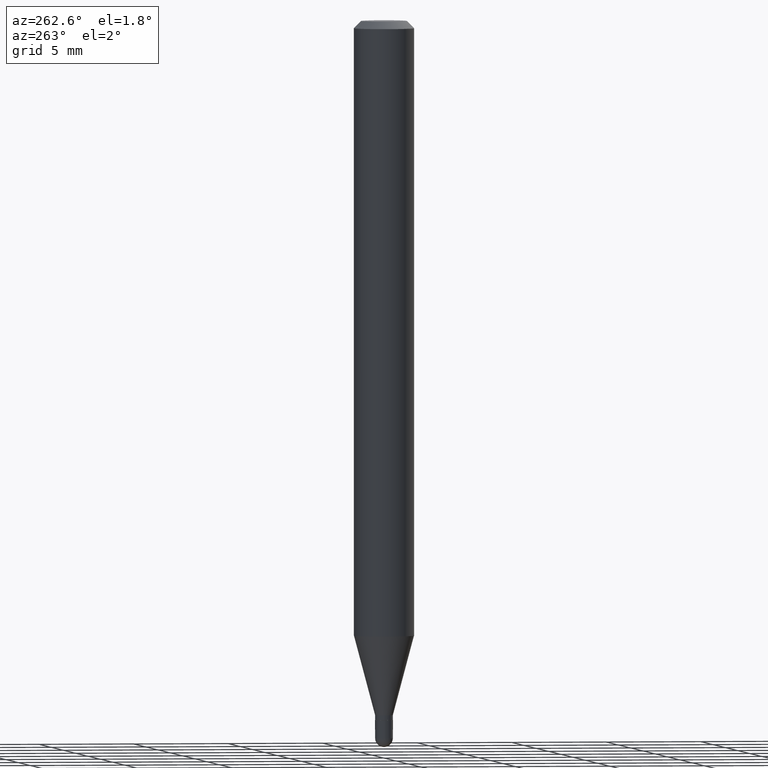
[diagram: clean part render]
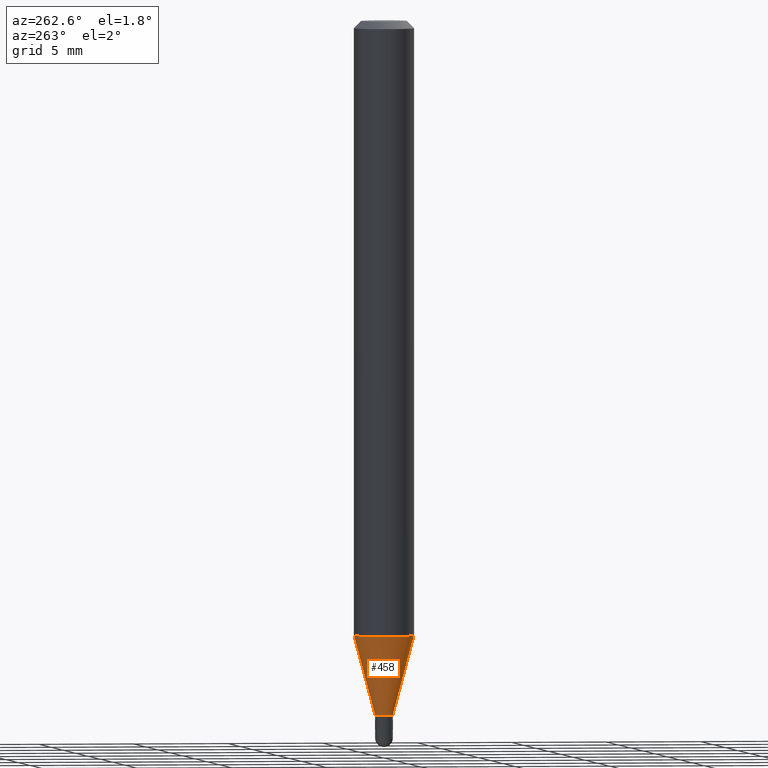
[diagram: same view with one face highlighted and labeled with its STEP entity id]
A machine part, auxiliary view. The second image highlights one B-rep face of the part: STEP entity #458.
In plain terms, the highlighted conical surface has half-angle 15 deg.
Its self-contained STEP definition (entity closure, byte-faithful):
#7 = LINE ( 'NONE', #441, #89 ) ;
#38 = FACE_OUTER_BOUND ( 'NONE', #469, .T. ) ;
#41 = VERTEX_POINT ( 'NONE', #457 ) ;
#52 = ORIENTED_EDGE ( 'NONE', *, *, #195, .T. ) ;
#79 = CARTESIAN_POINT ( 'NONE',  ( 3.506824125616585168E-29, -5.006752938649570137E-15, -1.434000000000000163 ) ) ;
#80 = ORIENTED_EDGE ( 'NONE', *, *, #477, .F. ) ;
#89 = VECTOR ( 'NONE', #324, 39.37007874015749564 ) ;
#119 = ORIENTED_EDGE ( 'NONE', *, *, #378, .T. ) ;
#132 = CARTESIAN_POINT ( 'NONE',  ( -1.291848095371603260E-16, -0.01850000000000492917, -1.434000000000000163 ) ) ;
#134 = EDGE_CURVE ( 'NONE', #353, #280, #298, .T. ) ;
#140 = DIRECTION ( 'NONE',  ( -2.445484048547130509E-29, 3.491459510913228997E-15, 1.000000000000000000 ) ) ;
#155 = VERTEX_POINT ( 'NONE', #132 ) ;
#161 = CONICAL_SURFACE ( 'NONE', #503, 0.01849999999999992276, 0.2617993877991501850 ) ;
#183 = CARTESIAN_POINT ( 'NONE',  ( -4.364351673553607559E-16, -0.06250000000000444089, -1.269789764466969340 ) ) ;
#195 = EDGE_CURVE ( 'NONE', #41, #155, #213, .T. ) ;
#208 = LINE ( 'NONE', #405, #465 ) ;
#213 = CIRCLE ( 'NONE', #229, 0.01849999999999992276 ) ;
#229 = AXIS2_PLACEMENT_3D ( 'NONE', #505, #140, #507 ) ;
#237 = AXIS2_PLACEMENT_3D ( 'NONE', #257, #336, #290 ) ;
#257 = CARTESIAN_POINT ( 'NONE',  ( 3.105250614012392213E-29, -4.433419550008470244E-15, -1.269789764466969562 ) ) ;
#280 = VERTEX_POINT ( 'NONE', #183 ) ;
#281 = DIRECTION ( 'NONE',  ( -2.445484048547130509E-29, 3.491459510913228997E-15, 1.000000000000000000 ) ) ;
#290 = DIRECTION ( 'NONE',  ( -6.982962677686265922E-15, -1.000000000000000000, 4.370956789862821150E-15 ) ) ;
#298 = CIRCLE ( 'NONE', #237, 0.06250000000000000000 ) ;
#324 = DIRECTION ( 'NONE',  ( -1.807323732225329350E-15, -0.2588190451025180194, 0.9659258262890689783 ) ) ;
#336 = DIRECTION ( 'NONE',  ( -2.445484048547130509E-29, 3.491459510913228997E-15, 1.000000000000000000 ) ) ;
#353 = VERTEX_POINT ( 'NONE', #439 ) ;
#378 = EDGE_CURVE ( 'NONE', #155, #280, #7, .T. ) ;
#395 = DIRECTION ( 'NONE',  ( -6.982962677686265922E-15, -1.000000000000000000, 0.000000000000000000 ) ) ;
#405 = CARTESIAN_POINT ( 'NONE',  ( 1.314504061156530405E-16, 0.01849999999999491634, -1.434000000000000163 ) ) ;
#439 = CARTESIAN_POINT ( 'NONE',  ( 4.440892098500933817E-16, 0.06249999999999555217, -1.269789764466970006 ) ) ;
#441 = CARTESIAN_POINT ( 'NONE',  ( -1.291848095371603260E-16, -0.01850000000000492917, -1.434000000000000163 ) ) ;
#457 = CARTESIAN_POINT ( 'NONE',  ( 2.877698079828734700E-16, 0.01849999999999491634, -1.434000000000000163 ) ) ;
#458 = ADVANCED_FACE ( 'NONE', ( #38 ), #161, .T. ) ;
#465 = VECTOR ( 'NONE', #500, 39.37007874015748143 ) ;
#469 = EDGE_LOOP ( 'NONE', ( #80, #52, #119, #481 ) ) ;
#477 = EDGE_CURVE ( 'NONE', #41, #353, #208, .T. ) ;
#481 = ORIENTED_EDGE ( 'NONE', *, *, #134, .F. ) ;
#500 = DIRECTION ( 'NONE',  ( 1.839019923739599526E-15, 0.2588190451025248473, 0.9659258262890670910 ) ) ;
#503 = AXIS2_PLACEMENT_3D ( 'NONE', #79, #281, #395 ) ;
#505 = CARTESIAN_POINT ( 'NONE',  ( 3.506824125616585168E-29, -5.006752938649570137E-15, -1.434000000000000163 ) ) ;
#507 = DIRECTION ( 'NONE',  ( -6.982962677686265922E-15, -1.000000000000000000, 0.000000000000000000 ) ) ;